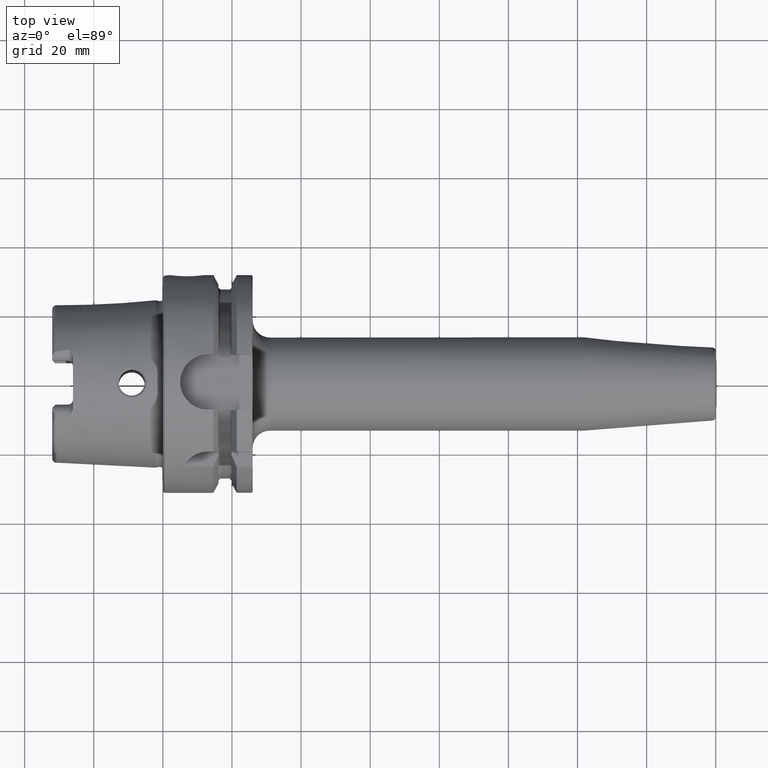
[diagram: clean part render]
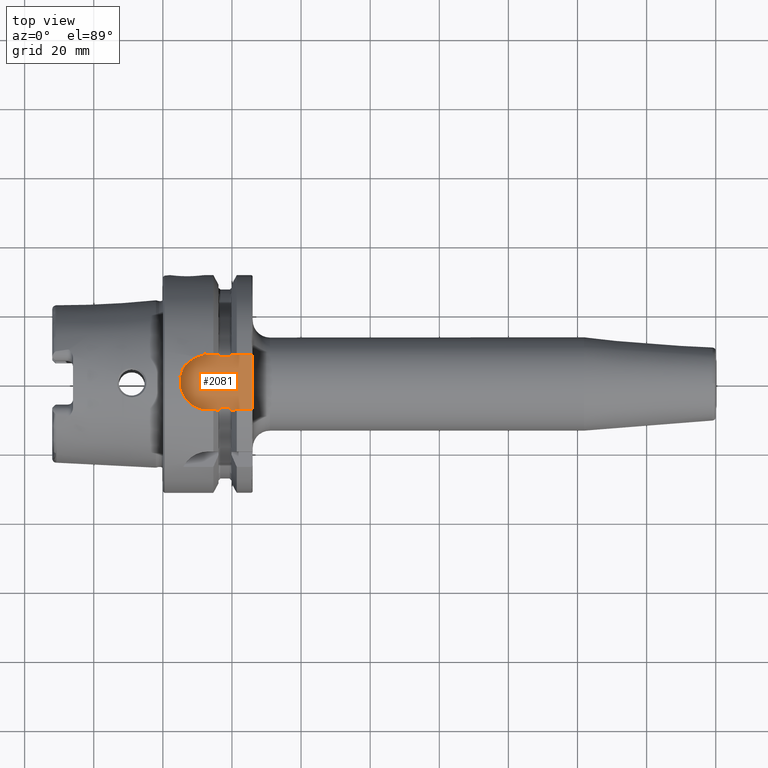
[diagram: same view with one face highlighted and labeled with its STEP entity id]
A machine part, top view. The second image highlights one B-rep face of the part: STEP entity #2081.
In plain terms, the highlighted planar face has unit normal (0, 0, 1).
Its self-contained STEP definition (entity closure, byte-faithful):
#76=B_SPLINE_CURVE_WITH_KNOTS('',3,(#4183,#4184,#4185,#4186,#4187,#4188,
#4189,#4190,#4191,#4192),.UNSPECIFIED.,.F.,.F.,(4,2,2,2,4),(0.252714277572707,
0.289228035148658,0.316691561230897,0.323545183976989,0.328785692776271),
 .UNSPECIFIED.);
#77=B_SPLINE_CURVE_WITH_KNOTS('',3,(#4198,#4199,#4200,#4201,#4202,#4203,
#4204,#4205,#4206,#4207),.UNSPECIFIED.,.F.,.F.,(4,2,2,2,4),(0.328785692776271,
0.334026201575553,0.340879824321645,0.368343350403883,0.404857107979834),
 .UNSPECIFIED.);
#80=B_SPLINE_CURVE_WITH_KNOTS('',3,(#4252,#4253,#4254,#4255,#4256,#4257,
#4258,#4259,#4260,#4261),.UNSPECIFIED.,.F.,.F.,(4,2,2,2,4),(0.32878569277627,
0.334026201575551,0.340879824321645,0.368343350403882,0.404857107979833),
 .UNSPECIFIED.);
#83=B_SPLINE_CURVE_WITH_KNOTS('',3,(#4278,#4279,#4280,#4281,#4282,#4283,
#4284,#4285,#4286,#4287),.UNSPECIFIED.,.F.,.F.,(4,2,2,2,4),(0.252714277572707,
0.289228035148658,0.316691561230896,0.323545183976989,0.32878569277627),
 .UNSPECIFIED.);
#133=PLANE('',#2314);
#293=FACE_OUTER_BOUND('',#422,.T.);
#422=EDGE_LOOP('',(#1769,#1770,#1771,#1772,#1773,#1774,#1775,#1776,#1777,
#1778,#1779,#1780));
#481=LINE('',#3100,#591);
#552=LINE('',#4237,#662);
#553=LINE('',#4242,#663);
#555=LINE('',#4291,#665);
#556=LINE('',#4294,#666);
#560=LINE('',#4326,#670);
#562=LINE('',#4329,#672);
#591=VECTOR('',#2481,10.);
#662=VECTOR('',#2792,10.);
#663=VECTOR('',#2799,10.);
#665=VECTOR('',#2817,10.);
#666=VECTOR('',#2820,10.);
#670=VECTOR('',#2830,10.);
#672=VECTOR('',#2834,10.);
#769=CIRCLE('',#2311,8.);
#841=VERTEX_POINT('',#3097);
#842=VERTEX_POINT('',#3099);
#978=VERTEX_POINT('',#4175);
#979=VERTEX_POINT('',#4182);
#980=VERTEX_POINT('',#4195);
#981=VERTEX_POINT('',#4197);
#984=VERTEX_POINT('',#4236);
#985=VERTEX_POINT('',#4240);
#987=VERTEX_POINT('',#4251);
#989=VERTEX_POINT('',#4271);
#990=VERTEX_POINT('',#4293);
#994=VERTEX_POINT('',#4322);
#1057=EDGE_CURVE('',#841,#842,#481,.T.);
#1244=EDGE_CURVE('',#978,#979,#76,.T.);
#1247=EDGE_CURVE('',#980,#981,#77,.T.);
#1255=EDGE_CURVE('',#979,#984,#552,.T.);
#1258=EDGE_CURVE('',#985,#980,#553,.T.);
#1261=EDGE_CURVE('',#984,#987,#80,.T.);
#1265=EDGE_CURVE('',#989,#985,#83,.T.);
#1267=EDGE_CURVE('',#989,#842,#555,.T.);
#1268=EDGE_CURVE('',#990,#981,#556,.T.);
#1273=EDGE_CURVE('',#994,#990,#769,.T.);
#1275=EDGE_CURVE('',#841,#987,#560,.T.);
#1277=EDGE_CURVE('',#978,#994,#562,.T.);
#1769=ORIENTED_EDGE('',*,*,#1247,.F.);
#1770=ORIENTED_EDGE('',*,*,#1258,.F.);
#1771=ORIENTED_EDGE('',*,*,#1265,.F.);
#1772=ORIENTED_EDGE('',*,*,#1267,.T.);
#1773=ORIENTED_EDGE('',*,*,#1057,.F.);
#1774=ORIENTED_EDGE('',*,*,#1275,.T.);
#1775=ORIENTED_EDGE('',*,*,#1261,.F.);
#1776=ORIENTED_EDGE('',*,*,#1255,.F.);
#1777=ORIENTED_EDGE('',*,*,#1244,.F.);
#1778=ORIENTED_EDGE('',*,*,#1277,.T.);
#1779=ORIENTED_EDGE('',*,*,#1273,.T.);
#1780=ORIENTED_EDGE('',*,*,#1268,.T.);
#2081=ADVANCED_FACE('',(#293),#133,.T.);
#2311=AXIS2_PLACEMENT_3D('',#4323,#2825,#2826);
#2314=AXIS2_PLACEMENT_3D('',#4330,#2835,#2836);
#2481=DIRECTION('',(0.,-1.,0.));
#2792=DIRECTION('',(1.,0.,0.));
#2799=DIRECTION('',(-1.,0.,0.));
#2817=DIRECTION('',(1.,3.41607084500048E-16,0.));
#2820=DIRECTION('',(1.,3.41607084500048E-16,0.));
#2825=DIRECTION('center_axis',(0.,0.,1.));
#2826=DIRECTION('ref_axis',(0.,1.,0.));
#2830=DIRECTION('',(-1.,-2.56205313375036E-16,0.));
#2834=DIRECTION('',(-1.,-2.56205313375036E-16,0.));
#2835=DIRECTION('center_axis',(0.,0.,1.));
#2836=DIRECTION('ref_axis',(1.,0.,0.));
#3097=CARTESIAN_POINT('',(26.,8.,26.5));
#3099=CARTESIAN_POINT('',(26.,-8.,26.5));
#3100=CARTESIAN_POINT('',(26.,5.55111512312578E-16,26.5));
#4175=CARTESIAN_POINT('',(16.2397987608563,8.,26.5));
#4182=CARTESIAN_POINT('',(16.625,7.34846922834952,26.5));
#4183=CARTESIAN_POINT('Ctrl Pts',(16.2397987608563,8.,26.5));
#4184=CARTESIAN_POINT('Ctrl Pts',(16.2699372185845,7.87398729043679,26.5));
#4185=CARTESIAN_POINT('Ctrl Pts',(16.3063113289614,7.75248496685372,26.5));
#4186=CARTESIAN_POINT('Ctrl Pts',(16.3906456489289,7.5566112023157,26.5));
#4187=CARTESIAN_POINT('Ctrl Pts',(16.4411490019356,7.4590543697872,26.5));
#4188=CARTESIAN_POINT('Ctrl Pts',(16.5270295504762,7.38349170057081,26.5));
#4189=CARTESIAN_POINT('Ctrl Pts',(16.5496994821687,7.36807649661538,26.5));
#4190=CARTESIAN_POINT('Ctrl Pts',(16.587038394856,7.35287762173868,26.5));
#4191=CARTESIAN_POINT('Ctrl Pts',(16.6075316373357,7.34846922834952,26.5));
#4192=CARTESIAN_POINT('Ctrl Pts',(16.625,7.34846922834952,26.5));
#4195=CARTESIAN_POINT('',(16.625,-7.34846922834952,26.5));
#4197=CARTESIAN_POINT('',(16.2397987608563,-8.,26.5));
#4198=CARTESIAN_POINT('Ctrl Pts',(16.625,-7.34846922834952,26.5));
#4199=CARTESIAN_POINT('Ctrl Pts',(16.6075316373357,-7.34846922834952,26.5));
#4200=CARTESIAN_POINT('Ctrl Pts',(16.587038394856,-7.35287762173868,26.5));
#4201=CARTESIAN_POINT('Ctrl Pts',(16.5496994821687,-7.36807649661538,26.5));
#4202=CARTESIAN_POINT('Ctrl Pts',(16.5270295504762,-7.38349170057081,26.5));
#4203=CARTESIAN_POINT('Ctrl Pts',(16.4411490019356,-7.4590543697872,26.5));
#4204=CARTESIAN_POINT('Ctrl Pts',(16.3906456489289,-7.5566112023157,26.5));
#4205=CARTESIAN_POINT('Ctrl Pts',(16.3063113289614,-7.75248496685372,26.5));
#4206=CARTESIAN_POINT('Ctrl Pts',(16.2699372185845,-7.87398729043679,26.5));
#4207=CARTESIAN_POINT('Ctrl Pts',(16.2397987608563,-8.,26.5));
#4236=CARTESIAN_POINT('',(19.375,7.34846922834952,26.5));
#4237=CARTESIAN_POINT('',(18.,7.34846922834952,26.5));
#4240=CARTESIAN_POINT('',(19.375,-7.34846922834952,26.5));
#4242=CARTESIAN_POINT('',(18.,-7.34846922834952,26.5));
#4251=CARTESIAN_POINT('',(19.7602012391437,8.,26.5));
#4252=CARTESIAN_POINT('Ctrl Pts',(19.375,7.34846922834952,26.5));
#4253=CARTESIAN_POINT('Ctrl Pts',(19.3924683626643,7.34846922834952,26.5));
#4254=CARTESIAN_POINT('Ctrl Pts',(19.412961605144,7.35287762173868,26.5));
#4255=CARTESIAN_POINT('Ctrl Pts',(19.4503005178313,7.36807649661538,26.5));
#4256=CARTESIAN_POINT('Ctrl Pts',(19.4729704495238,7.38349170057082,26.5));
#4257=CARTESIAN_POINT('Ctrl Pts',(19.5588509980644,7.45905436978721,26.5));
#4258=CARTESIAN_POINT('Ctrl Pts',(19.6093543510711,7.5566112023157,26.5));
#4259=CARTESIAN_POINT('Ctrl Pts',(19.6936886710386,7.75248496685372,26.5));
#4260=CARTESIAN_POINT('Ctrl Pts',(19.7300627814155,7.87398729043679,26.5));
#4261=CARTESIAN_POINT('Ctrl Pts',(19.7602012391437,8.,26.5));
#4271=CARTESIAN_POINT('',(19.7602012391437,-8.,26.5));
#4278=CARTESIAN_POINT('Ctrl Pts',(19.7602012391436,-8.,26.5));
#4279=CARTESIAN_POINT('Ctrl Pts',(19.7300627814155,-7.87398729043679,26.5));
#4280=CARTESIAN_POINT('Ctrl Pts',(19.6936886710386,-7.75248496685372,26.5));
#4281=CARTESIAN_POINT('Ctrl Pts',(19.6093543510711,-7.5566112023157,26.5));
#4282=CARTESIAN_POINT('Ctrl Pts',(19.5588509980644,-7.45905436978721,26.5));
#4283=CARTESIAN_POINT('Ctrl Pts',(19.4729704495238,-7.38349170057082,26.5));
#4284=CARTESIAN_POINT('Ctrl Pts',(19.4503005178313,-7.36807649661538,26.5));
#4285=CARTESIAN_POINT('Ctrl Pts',(19.412961605144,-7.35287762173868,26.5));
#4286=CARTESIAN_POINT('Ctrl Pts',(19.3924683626643,-7.34846922834952,26.5));
#4287=CARTESIAN_POINT('Ctrl Pts',(19.375,-7.34846922834952,26.5));
#4291=CARTESIAN_POINT('',(13.,-8.,26.5));
#4293=CARTESIAN_POINT('',(13.,-8.,26.5));
#4294=CARTESIAN_POINT('',(13.,-8.,26.5));
#4322=CARTESIAN_POINT('',(13.,8.,26.5));
#4323=CARTESIAN_POINT('Origin',(13.,0.,26.5));
#4326=CARTESIAN_POINT('',(26.,8.,26.5));
#4329=CARTESIAN_POINT('',(26.,8.,26.5));
#4330=CARTESIAN_POINT('Origin',(15.5,1.11022302462516E-15,26.5));